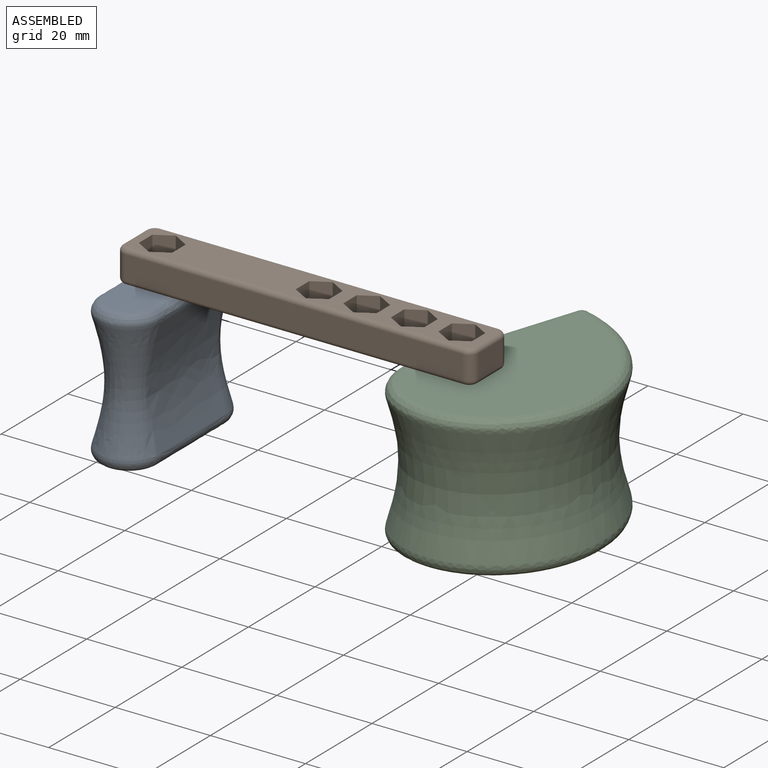
[diagram: assembled view]
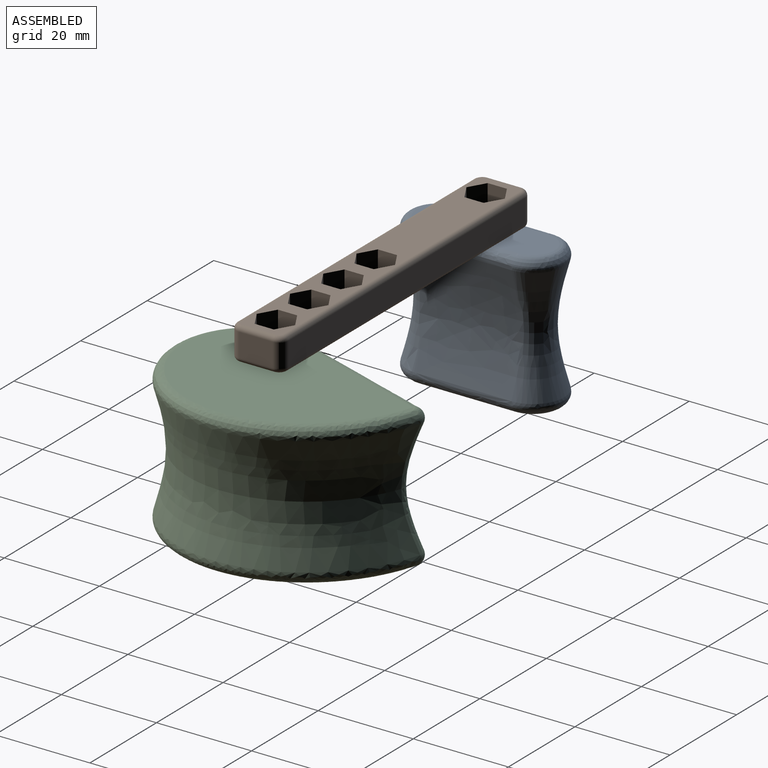
[diagram: assembled view, second angle]
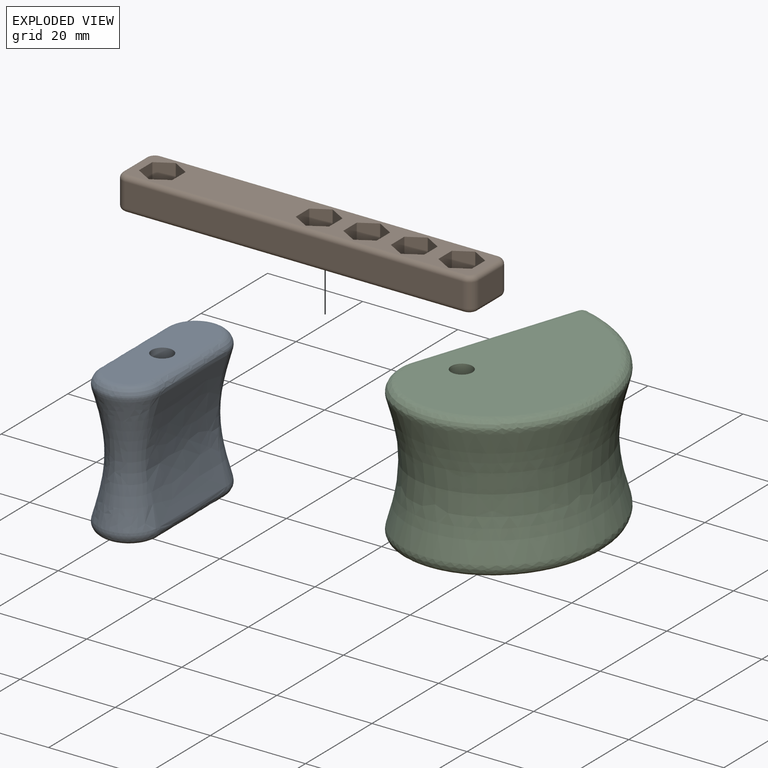
[diagram: exploded view]
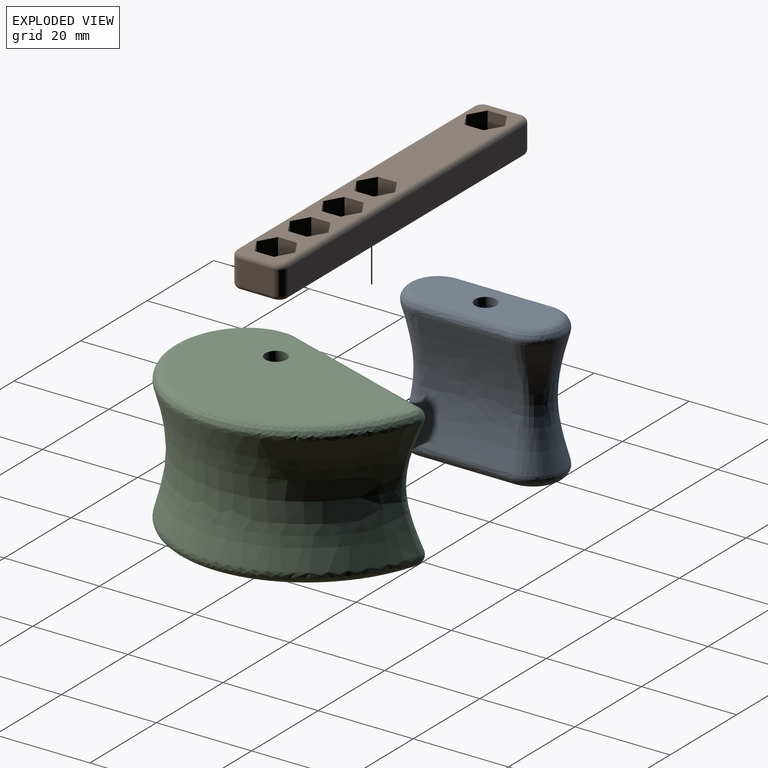
[diagram: exploded view, second angle]
ASSEMBLY  parts=3 mates=2
PART A: 6 faces, bbox 14.5x34.5x30 mm
  f0: plane 29.14x9.14mm, normal (0,0,-1), area 232.4mm2, adj f4,f5
  f1: bspline ~34.5x30mm, area 1823.7mm2, adj f3,f4
  f2: plane 29.14x9.14mm, normal (0,0,1), area 232.4mm2, adj f3,f5
  f3: bspline ~33.09x13.13mm, area 286.2mm2, adj f1,f2
  f4: bspline ~33.09x13.13mm, area 285.9mm2, adj f0,f1
  f5: cylinder r=2.25mm len=30mm, axis (0,0,1), area 424.1mm2, adj f0,f2
PART B: 66 faces, bbox 11.3x75.3x7 mm
  f0: plane 5x3.5mm, normal (-0.87,-0.5,0), area 20.2mm2, adj f1,f37,f38,f49
  f1: plane 5x3.5mm, normal (-0.87,0.5,0), area 20.2mm2, adj f0,f2,f38,f49
  f2: plane 5x4.04mm, normal (0,1,0), area 20.2mm2, adj f1,f3,f38,f49
  f3: plane 5x3.5mm, normal (0.87,0.5,0), area 20.2mm2, adj f2,f4,f38,f49
  f4: plane 5x3.5mm, normal (0.87,-0.5,0), area 20.2mm2, adj f3,f37,f38,f49
  f5: plane 5x3.5mm, normal (-0.87,-0.5,0), area 20.2mm2, adj f6,f32,f38,f47
  f6: plane 5x3.5mm, normal (-0.87,0.5,0), area 20.2mm2, adj f5,f7,f38,f47
  f7: plane 5x4.04mm, normal (0,1,0), area 20.2mm2, adj f6,f8,f38,f47
  f8: plane 5x3.5mm, normal (0.87,0.5,0), area 20.2mm2, adj f7,f9,f38,f47
  f9: plane 5x3.5mm, normal (0.87,-0.5,0), area 20.2mm2, adj f8,f32,f38,f47
  f10: plane 5x3.5mm, normal (-0.87,-0.5,0), area 20.2mm2, adj f11,f33,f38,f45
  f11: plane 5x3.5mm, normal (-0.87,0.5,0), area 20.2mm2, adj f10,f12,f38,f45
  f12: plane 5x4.04mm, normal (0,1,0), area 20.2mm2, adj f11,f13,f38,f45
  f13: plane 5x3.5mm, normal (0.87,0.5,0), area 20.2mm2, adj f12,f14,f38,f45
  f14: plane 5x3.5mm, normal (0.87,-0.5,0), area 20.2mm2, adj f13,f33,f38,f45
  f15: plane 5x3.5mm, normal (-0.87,-0.5,0), area 20.2mm2, adj f16,f34,f38,f43
  f16: plane 5x3.5mm, normal (-0.87,0.5,0), area 20.2mm2, adj f15,f17,f38,f43
  f17: plane 5x4.04mm, normal (0,1,0), area 20.2mm2, adj f16,f18,f38,f43
  f18: plane 5x3.5mm, normal (0.87,0.5,0), area 20.2mm2, adj f17,f19,f38,f43
  f19: plane 5x3.5mm, normal (0.87,-0.5,0), area 20.2mm2, adj f18,f34,f38,f43
  f20: plane 5x3.5mm, normal (0.87,0.5,0), area 20.2mm2, adj f21,f35,f38,f41
  f21: plane 5x3.5mm, normal (0.87,-0.5,0), area 20.2mm2, adj f20,f22,f38,f41
  f22: plane 5x4.04mm, normal (0,-1,0), area 20.2mm2, adj f21,f23,f38,f41
  f23: plane 5x3.5mm, normal (-0.87,-0.5,0), area 20.2mm2, adj f22,f24,f38,f41
  f24: plane 5x3.5mm, normal (-0.87,0.5,0), area 20.2mm2, adj f23,f35,f38,f41
  f25: cylinder r=2mm len=5mm, axis (0,0,1), area 15.7mm2, adj f26,f36,f51,f59
  f26: plane 7x5mm, normal (0,-1,0), area 35mm2, adj f25,f27,f50,f58
  f27: cylinder r=2mm len=5mm, axis (0,0,1), area 15.7mm2, adj f26,f28,f52,f60
  f28: plane 71x5mm, normal (1,0,0), area 355mm2, adj f27,f29,f54,f62
  f29: cylinder r=2mm len=5mm, axis (0,0,1), area 15.7mm2, adj f28,f30,f56,f64
  f30: plane 7x5mm, normal (0,1,0), area 35mm2, adj f29,f31,f57,f65
  f31: cylinder r=2mm len=5mm, axis (0,0,1), area 15.7mm2, adj f30,f36,f55,f63
  f32: plane 5x4.04mm, normal (0,-1,0), area 20.2mm2, adj f5,f9,f38,f47
  f33: plane 5x4.04mm, normal (0,-1,0), area 20.2mm2, adj f10,f14,f38,f45
  f34: plane 5x4.04mm, normal (0,-1,0), area 20.2mm2, adj f15,f19,f38,f43
  f35: plane 5x4.04mm, normal (0,1,0), area 20.2mm2, adj f20,f24,f38,f41
  f36: plane 71x5mm, normal (-1,0,0), area 355mm2, adj f25,f31,f53,f61
  f37: plane 5x4.04mm, normal (0,-1,0), area 20.2mm2, adj f0,f4,f38,f49
  f38: plane 73x9mm, normal (0,0,-1), area 444mm2, adj f0,f1,f2,f3,f4,f5,f6,f7
  f39: plane 73x9mm, normal (0,0,1), area 593.3mm2, adj f40,f42,f44,f46,f48,f50,f51,f52
  f40: cylinder r=2mm len=4mm, axis (0,0,1), area 25.1mm2, adj f39,f41
  f41: plane 8.08x7mm, normal (0,0,-1), area 29.9mm2, adj f20,f21,f22,f23,f24,f35,f40
  f42: cylinder r=2mm len=4mm, axis (0,0,1), area 25.1mm2, adj f39,f43
  f43: plane 8.08x7mm, normal (0,0,-1), area 29.9mm2, adj f15,f16,f17,f18,f19,f34,f42
  f44: cylinder r=2mm len=4mm, axis (0,0,1), area 25.1mm2, adj f39,f45
  f45: plane 8.08x7mm, normal (0,0,-1), area 29.9mm2, adj f10,f11,f12,f13,f14,f33,f44
  f46: cylinder r=2mm len=4mm, axis (0,0,1), area 25.1mm2, adj f39,f47
  f47: plane 8.08x7mm, normal (0,0,-1), area 29.9mm2, adj f5,f6,f7,f8,f9,f32,f46
  f48: cylinder r=2mm len=4mm, axis (0,0,1), area 25.1mm2, adj f39,f49
  f49: plane 8.08x7mm, normal (0,0,-1), area 29.9mm2, adj f0,f1,f2,f3,f4,f37,f48
  f50: cylinder r=1mm len=7mm, axis (1,0,0), area 11mm2, adj f26,f39,f51,f52
  f51: torus R=1mm, axis (0,0,1), area 4mm2, adj f25,f39,f50,f53
  f52: torus R=1mm, axis (0,0,1), area 4mm2, adj f27,f39,f50,f54
  f53: cylinder r=1mm len=71mm, axis (0,-1,0), area 111.5mm2, adj f36,f39,f51,f55
  f54: cylinder r=1mm len=71mm, axis (0,1,0), area 111.5mm2, adj f28,f39,f52,f56
  f55: torus R=1mm, axis (0,0,1), area 4mm2, adj f31,f39,f53,f57
  f56: torus R=1mm, axis (0,0,1), area 4mm2, adj f29,f39,f54,f57
  f57: cylinder r=1mm len=7mm, axis (-1,0,0), area 11mm2, adj f30,f39,f55,f56
  f58: cylinder r=1mm len=7mm, axis (-1,0,0), area 11mm2, adj f26,f38,f59,f60
  f59: torus R=1mm, axis (0,0,1), area 4mm2, adj f25,f38,f58,f61
  f60: torus R=1mm, axis (0,0,1), area 4mm2, adj f27,f38,f58,f62
  f61: cylinder r=1mm len=71mm, axis (0,1,0), area 111.5mm2, adj f36,f38,f59,f63
  f62: cylinder r=1mm len=71mm, axis (0,-1,0), area 111.5mm2, adj f28,f38,f60,f64
  f63: torus R=1mm, axis (0,0,1), area 4mm2, adj f31,f38,f61,f65
  f64: torus R=1mm, axis (0,0,1), area 4mm2, adj f29,f38,f62,f65
  f65: cylinder r=1mm len=7mm, axis (1,0,0), area 11mm2, adj f30,f38,f63,f64
PART C: 12 faces, bbox 39.6x59.5x30 mm
  f0: plane 47.43x32.95mm, normal (0,0,1), area 1054.6mm2, adj f4,f5,f6
  f1: bspline ~39.25x30mm, area 873.4mm2, adj f2,f5,f6,f8,f9,f10
  f2: bspline ~53.51x38.46mm, area 2282.7mm2, adj f1,f5,f9,f10
  f3: plane 47.43x32.95mm, normal (0,0,-1), area 1054.8mm2, adj f4,f8,f9
  f4: cylinder r=2.25mm len=30mm, axis (0,0,1), area 424.1mm2, adj f0,f3
  f5: bspline ~52.96x38.31mm, area 358.8mm2, adj f0,f1,f2,f6,f7
  f6: bspline ~47.3x20.36mm, area 129.3mm2, adj f0,f1,f5,f7
  f7: sphere r=2mm, area 4.8mm2, adj f5,f6,f10
  f8: bspline ~47.3x20.36mm, area 129.3mm2, adj f1,f3,f9,f11
  f9: bspline ~52.91x38.32mm, area 358.9mm2, adj f1,f2,f3,f8,f11
  f10: bspline ~27.69x4.98mm, area 78.4mm2, adj f1,f2,f7,f11
  f11: sphere r=2mm, area 7.8mm2, adj f8,f9,f10
PLACE A rot(axis=(1,0,0),180deg) t=(-154.9,48.65,-49.96)mm
PLACE B rot(axis=(0.71,0.71,0),180deg) t=(-94.43,108.19,-34.96)mm fixed
PLACE C rot(axis=(0,0,-1),177.3deg) t=(-54.16,47.2,-49.96)mm
MATE fastened A.f5 <-> B.f40  axis (0,0,1) through (-117.16,47.2,-34.96)mm
MATE revolute C.f4 <-> B.f42  axis (0,0,1) through (-54.16,47.2,-34.96)mm
